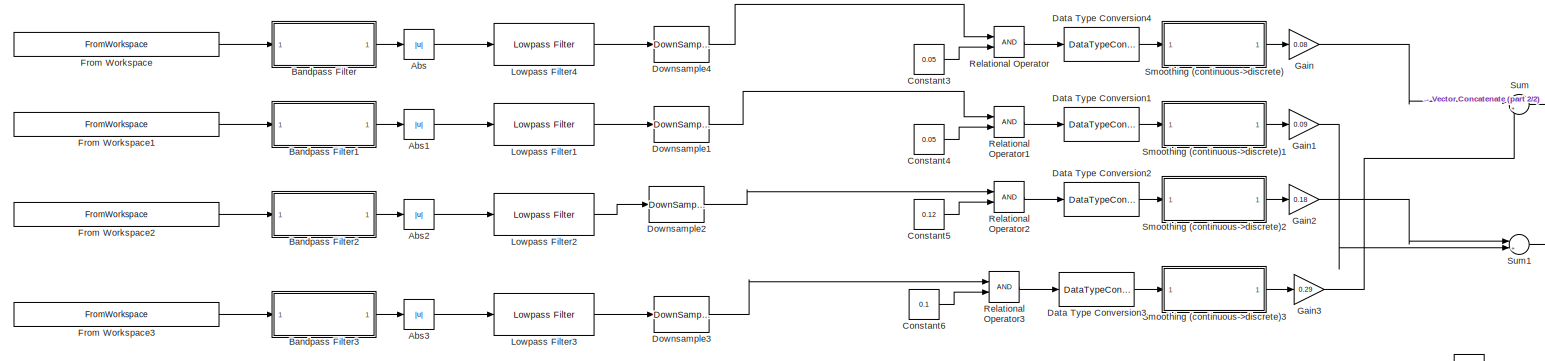
[diagram: root canvas - part 1/2, most of the canvas]
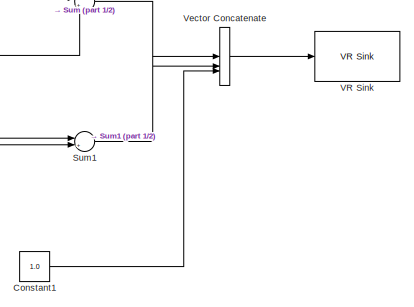
[diagram: root canvas - part 2/2, middle right region]
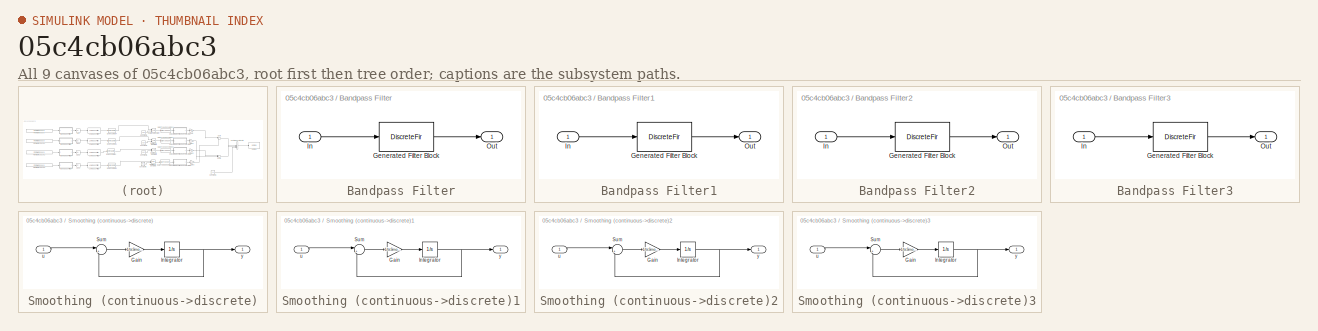
[diagram: thumbnail index - all 9 canvases of the model, root first then tree order]
MODEL slx_05c4cb06abc3
KIND model
CONFIG AbsTol = auto
CONFIG EnableMultiTasking = off
CONFIG FixedStep = auto
CONFIG MaxStep = auto
CONFIG MinStep = auto
CONFIG RelTol = 1e-3
CONFIG SampleTimeConstraint = Unconstrained
CONFIG SolverName = VariableStepAuto
CONFIG StartTime = 0.0
CONFIG StopTime = 30.0
BLOCK [Abs] Abs
  SaturateOnIntegerOverflow = off
BLOCK [Abs] Abs1
  SaturateOnIntegerOverflow = off
BLOCK [Abs] Abs2
  SaturateOnIntegerOverflow = off
BLOCK [Abs] Abs3
  SaturateOnIntegerOverflow = off
BLOCK [SubSystem] Bandpass Filter
  CopyFcn = fdesignblkfcn(gcbh, {'CopyFcn'});
  DialogController = fdesignblkfcn
  InitFcn = fdesignblkfcn(gcbh, {'InitFcn'});
  UserDataPersistent = on
BLOCK [DiscreteFir] Bandpass Filter/Generated Filter Block
  Coefficients = [-0.0867106986736685681 0.172879501957226178 0.0611368344740756825 0.00822498172698654662 -0.0189364689630777752 -0.0305456119635362962 -0.029927052061019966 -0.0224311445482471734 -0.0154422453333472702 -0.0147705811987406625 -0.0205783857487597949 -0.0272517797256104505 -0.0284569945610830509 -0.0221839585574007091 -0.0127406715665240016 -0.00735000555653291324 -0.0102169041814385748 -0.01891811...<+1912ch>  <repeated x4 — deduplicated; at blocks: Generated Filter Block>
  InputPortMap = u0
  InputProcessing = Columns as channels (frame based)
  OutputPortMap = o0
  Tag = BlockMethodSubSystem
BLOCK [Inport] Bandpass Filter/In
BLOCK [Outport] Bandpass Filter/Out
  VectorParamsAs1DForOutWhenUnconnected = off
BLOCK [SubSystem] Bandpass Filter1
  CopyFcn = fdesignblkfcn(gcbh, {'CopyFcn'});
  DialogController = fdesignblkfcn
  InitFcn = fdesignblkfcn(gcbh, {'InitFcn'});
  UserDataPersistent = on
BLOCK [DiscreteFir] Bandpass Filter1/Generated Filter Block
  InputPortMap = u0
  InputProcessing = Columns as channels (frame based)
  OutputPortMap = o0
  Tag = BlockMethodSubSystem
BLOCK [Inport] Bandpass Filter1/In
BLOCK [Outport] Bandpass Filter1/Out
  VectorParamsAs1DForOutWhenUnconnected = off
BLOCK [SubSystem] Bandpass Filter2
  CopyFcn = fdesignblkfcn(gcbh, {'CopyFcn'});
  DialogController = fdesignblkfcn
  InitFcn = fdesignblkfcn(gcbh, {'InitFcn'});
  UserDataPersistent = on
BLOCK [DiscreteFir] Bandpass Filter2/Generated Filter Block
  InputPortMap = u0
  InputProcessing = Columns as channels (frame based)
  OutputPortMap = o0
  Tag = BlockMethodSubSystem
BLOCK [Inport] Bandpass Filter2/In
BLOCK [Outport] Bandpass Filter2/Out
  VectorParamsAs1DForOutWhenUnconnected = off
BLOCK [SubSystem] Bandpass Filter3
  CopyFcn = fdesignblkfcn(gcbh, {'CopyFcn'});
  DialogController = fdesignblkfcn
  InitFcn = fdesignblkfcn(gcbh, {'InitFcn'});
  UserDataPersistent = on
BLOCK [DiscreteFir] Bandpass Filter3/Generated Filter Block
  InputPortMap = u0
  InputProcessing = Columns as channels (frame based)
  OutputPortMap = o0
  Tag = BlockMethodSubSystem
BLOCK [Inport] Bandpass Filter3/In
BLOCK [Outport] Bandpass Filter3/Out
  VectorParamsAs1DForOutWhenUnconnected = off
BLOCK [Constant] Constant1
  Value = 1.0
BLOCK [Constant] Constant3
  Value = 0.05
BLOCK [Constant] Constant4
  Value = 0.05
BLOCK [Constant] Constant5
  Value = 0.12
BLOCK [Constant] Constant6
  Value = 0.1
BLOCK [DataTypeConversion] Data Type Conversion1
  OutDataTypeStr = double
  OutMax = [1000]
  OutMin = [0.2]
  RndMeth = Floor
  SaturateOnIntegerOverflow = off
BLOCK [DataTypeConversion] Data Type Conversion2
  OutDataTypeStr = double
  OutMax = [1000]
  OutMin = [0.2]
  RndMeth = Floor
  SaturateOnIntegerOverflow = off
BLOCK [DataTypeConversion] Data Type Conversion3
  OutDataTypeStr = double
  OutMax = [1000]
  OutMin = [0.2]
  RndMeth = Floor
  SaturateOnIntegerOverflow = off
BLOCK [DataTypeConversion] Data Type Conversion4
  OutDataTypeStr = double
  OutMax = [1000]
  OutMin = [0.2]
  RndMeth = Floor
  SaturateOnIntegerOverflow = off
BLOCK [DownSample] Downsample1
  InputProcessing = Elements as channels (sample based)
  N = 100
  RateOptions = Allow multirate processing
BLOCK [DownSample] Downsample2
  InputProcessing = Elements as channels (sample based)
  N = 100
  RateOptions = Allow multirate processing
BLOCK [DownSample] Downsample3
  InputProcessing = Elements as channels (sample based)
  N = 100
  RateOptions = Allow multirate processing
BLOCK [DownSample] Downsample4
  InputProcessing = Elements as channels (sample based)
  N = 100
  RateOptions = Allow multirate processing
BLOCK [FromWorkspace] From Workspace
  SampleTime = 1/3000
  VariableName = [raw_emg_es2.time,raw_emg_es2.signals.values(:,1)]
BLOCK [FromWorkspace] From Workspace1
  SampleTime = 1/3000
  VariableName = [raw_emg_es2.time,raw_emg_es2.signals.values(:,2)]
BLOCK [FromWorkspace] From Workspace2
  SampleTime = 1/3000
  VariableName = [raw_emg_es2.time,raw_emg_es2.signals.values(:,3)]
BLOCK [FromWorkspace] From Workspace3
  SampleTime = 1/3000
  VariableName = [raw_emg_es2.time,raw_emg_es2.signals.values(:,4)]
BLOCK [Gain] Gain
  Gain = 0.08
BLOCK [Gain] Gain1
  Gain = 0.09
BLOCK [Gain] Gain2
  Gain = 0.18
BLOCK [Gain] Gain3
  Gain = 0.29
BLOCK [Reference] Lowpass Filter1  REF=dspfdesign/Lowpass Filter
  SourceBlock = dspfdesign/Lowpass Filter
  SourceType = dsp.simulink.LowpassFilter
BLOCK [Reference] Lowpass Filter2  REF=dspfdesign/Lowpass Filter
  SourceBlock = dspfdesign/Lowpass Filter
  SourceType = dsp.simulink.LowpassFilter
BLOCK [Reference] Lowpass Filter3  REF=dspfdesign/Lowpass Filter
  SourceBlock = dspfdesign/Lowpass Filter
  SourceType = dsp.simulink.LowpassFilter
BLOCK [Reference] Lowpass Filter4  REF=dspfdesign/Lowpass Filter
  SourceBlock = dspfdesign/Lowpass Filter
  SourceType = dsp.simulink.LowpassFilter
BLOCK [RelationalOperator] Relational Operator
  InputSameDT = off
  OutDataTypeStr = boolean
  RndMeth = Simplest
BLOCK [RelationalOperator] Relational Operator1
  InputSameDT = off
  OutDataTypeStr = boolean
  RndMeth = Simplest
BLOCK [RelationalOperator] Relational Operator2
  InputSameDT = off
  OutDataTypeStr = boolean
  RndMeth = Simplest
BLOCK [RelationalOperator] Relational Operator3
  InputSameDT = off
  OutDataTypeStr = boolean
  RndMeth = Simplest
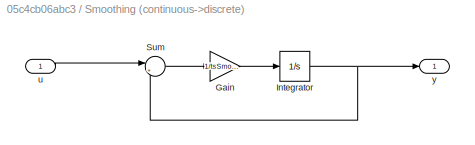
BLOCK [SubSystem] Smoothing (continuous->discrete)
BLOCK [Gain] Smoothing (continuous->discrete)/Gain
  Gain = 1/tsSmoothing
BLOCK [Integrator] Smoothing (continuous->discrete)/Integrator
  InitialCondition = smoothing0
BLOCK [Sum] Smoothing (continuous->discrete)/Sum
  Inputs = |+-
BLOCK [Inport] Smoothing (continuous->discrete)/u
BLOCK [Outport] Smoothing (continuous->discrete)/y
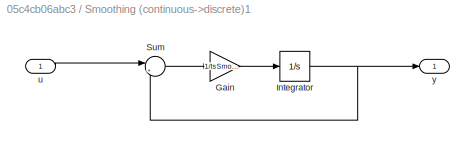
BLOCK [SubSystem] Smoothing (continuous->discrete)1
BLOCK [Gain] Smoothing (continuous->discrete)1/Gain
  Gain = 1/tsSmoothing
BLOCK [Integrator] Smoothing (continuous->discrete)1/Integrator
  InitialCondition = smoothing0
BLOCK [Sum] Smoothing (continuous->discrete)1/Sum
  Inputs = |+-
BLOCK [Inport] Smoothing (continuous->discrete)1/u
BLOCK [Outport] Smoothing (continuous->discrete)1/y
BLOCK [SubSystem] Smoothing (continuous->discrete)2
BLOCK [Gain] Smoothing (continuous->discrete)2/Gain
  Gain = 1/tsSmoothing
BLOCK [Integrator] Smoothing (continuous->discrete)2/Integrator
  InitialCondition = smoothing0
BLOCK [Sum] Smoothing (continuous->discrete)2/Sum
  Inputs = |+-
BLOCK [Inport] Smoothing (continuous->discrete)2/u
BLOCK [Outport] Smoothing (continuous->discrete)2/y
BLOCK [SubSystem] Smoothing (continuous->discrete)3
BLOCK [Gain] Smoothing (continuous->discrete)3/Gain
  Gain = 1/tsSmoothing
BLOCK [Integrator] Smoothing (continuous->discrete)3/Integrator
  InitialCondition = smoothing0
BLOCK [Sum] Smoothing (continuous->discrete)3/Sum
  Inputs = |+-
BLOCK [Inport] Smoothing (continuous->discrete)3/u
BLOCK [Outport] Smoothing (continuous->discrete)3/y
BLOCK [Sum] Sum
  Inputs = |+-
BLOCK [Sum] Sum1
  Inputs = |+-
BLOCK [Reference] VR Sink  REF=vrlib/VR Sink
  InstantiateOnLoad = on
  SourceBlock = vrlib/VR Sink
  SourceType = Virtual Reality Sink
BLOCK [Concatenate] Vector Concatenate
  NumInputs = 3
LINE Abs1:1 -> Lowpass Filter1:1
LINE Abs2:1 -> Lowpass Filter2:1
LINE Abs3:1 -> Lowpass Filter3:1
LINE Abs:1 -> Lowpass Filter4:1
LINE Bandpass Filter1:1 -> Abs1:1
LINE Bandpass Filter2:1 -> Abs2:1
LINE Bandpass Filter3:1 -> Abs3:1
LINE Bandpass Filter:1 -> Abs:1
LINE Constant1:1 -> Vector Concatenate:3
LINE Constant3:1 -> Relational Operator:2
LINE Constant4:1 -> Relational Operator1:2
LINE Constant5:1 -> Relational Operator2:2
LINE Constant6:1 -> Relational Operator3:2
LINE Data Type Conversion1:1 -> Smoothing (continuous->discrete)1:1
LINE Data Type Conversion2:1 -> Smoothing (continuous->discrete)2:1
LINE Data Type Conversion3:1 -> Smoothing (continuous->discrete)3:1
LINE Data Type Conversion4:1 -> Smoothing (continuous->discrete):1
LINE Downsample1:1 -> Relational Operator1:1
LINE Downsample2:1 -> Relational Operator2:1
LINE Downsample3:1 -> Relational Operator3:1
LINE Downsample4:1 -> Relational Operator:1
LINE From Workspace1:1 -> Bandpass Filter1:1
LINE From Workspace2:1 -> Bandpass Filter2:1
LINE From Workspace3:1 -> Bandpass Filter3:1
LINE From Workspace:1 -> Bandpass Filter:1
LINE Gain1:1 -> Sum1:2
LINE Gain2:1 -> Sum1:1
LINE Gain3:1 -> Sum:2
LINE Gain:1 -> Sum:1
LINE Lowpass Filter1:1 -> Downsample1:1
LINE Lowpass Filter2:1 -> Downsample2:1
LINE Lowpass Filter3:1 -> Downsample3:1
LINE Lowpass Filter4:1 -> Downsample4:1
LINE Relational Operator1:1 -> Data Type Conversion1:1
LINE Relational Operator2:1 -> Data Type Conversion2:1
LINE Relational Operator3:1 -> Data Type Conversion3:1
LINE Relational Operator:1 -> Data Type Conversion4:1
LINE Smoothing (continuous->discrete)/Gain:1 -> Smoothing (continuous->discrete)/Integrator:1
NET Smoothing (continuous->discrete)/Integrator:1 -> Smoothing (continuous->discrete)/Sum:2, Smoothing (continuous->discrete)/y:1
LINE Smoothing (continuous->discrete)/Sum:1 -> Smoothing (continuous->discrete)/Gain:1
LINE Smoothing (continuous->discrete)/u:1 -> Smoothing (continuous->discrete)/Sum:1
LINE Smoothing (continuous->discrete)1/Gain:1 -> Smoothing (continuous->discrete)1/Integrator:1
NET Smoothing (continuous->discrete)1/Integrator:1 -> Smoothing (continuous->discrete)1/Sum:2, Smoothing (continuous->discrete)1/y:1
LINE Smoothing (continuous->discrete)1/Sum:1 -> Smoothing (continuous->discrete)1/Gain:1
LINE Smoothing (continuous->discrete)1/u:1 -> Smoothing (continuous->discrete)1/Sum:1
LINE Smoothing (continuous->discrete)1:1 -> Gain1:1
LINE Smoothing (continuous->discrete)2/Gain:1 -> Smoothing (continuous->discrete)2/Integrator:1
NET Smoothing (continuous->discrete)2/Integrator:1 -> Smoothing (continuous->discrete)2/Sum:2, Smoothing (continuous->discrete)2/y:1
LINE Smoothing (continuous->discrete)2/Sum:1 -> Smoothing (continuous->discrete)2/Gain:1
LINE Smoothing (continuous->discrete)2/u:1 -> Smoothing (continuous->discrete)2/Sum:1
LINE Smoothing (continuous->discrete)2:1 -> Gain2:1
LINE Smoothing (continuous->discrete)3/Gain:1 -> Smoothing (continuous->discrete)3/Integrator:1
NET Smoothing (continuous->discrete)3/Integrator:1 -> Smoothing (continuous->discrete)3/Sum:2, Smoothing (continuous->discrete)3/y:1
LINE Smoothing (continuous->discrete)3/Sum:1 -> Smoothing (continuous->discrete)3/Gain:1
LINE Smoothing (continuous->discrete)3/u:1 -> Smoothing (continuous->discrete)3/Sum:1
LINE Smoothing (continuous->discrete)3:1 -> Gain3:1
LINE Smoothing (continuous->discrete):1 -> Gain:1
LINE Sum1:1 -> Vector Concatenate:2
LINE Sum:1 -> Vector Concatenate:1
LINE Vector Concatenate:1 -> VR Sink:1
note: NET lines group one-source signal fan-out (src -> all destinations, sorted); 1:1 wires keep LINE
